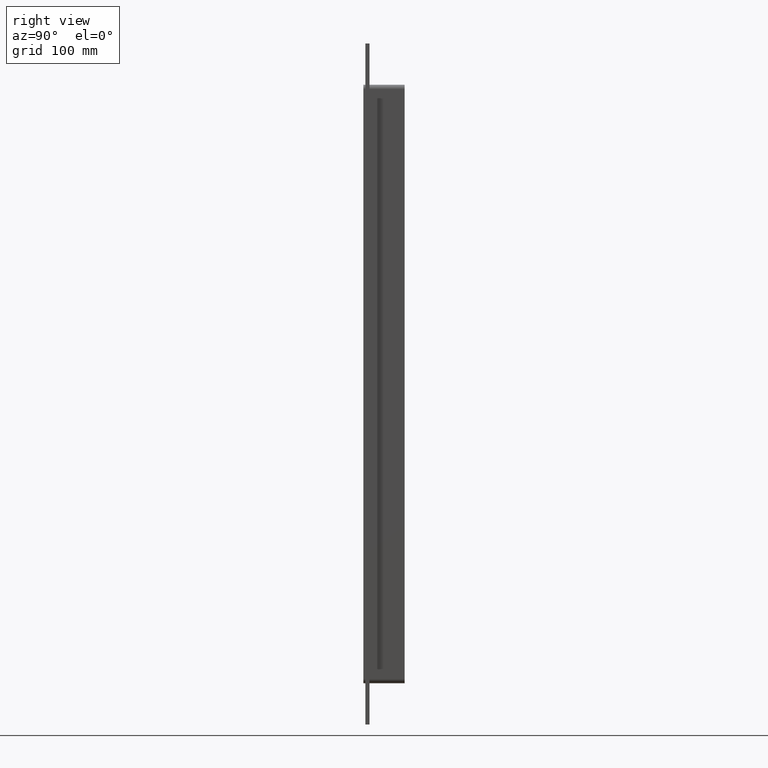
[diagram: clean part render]
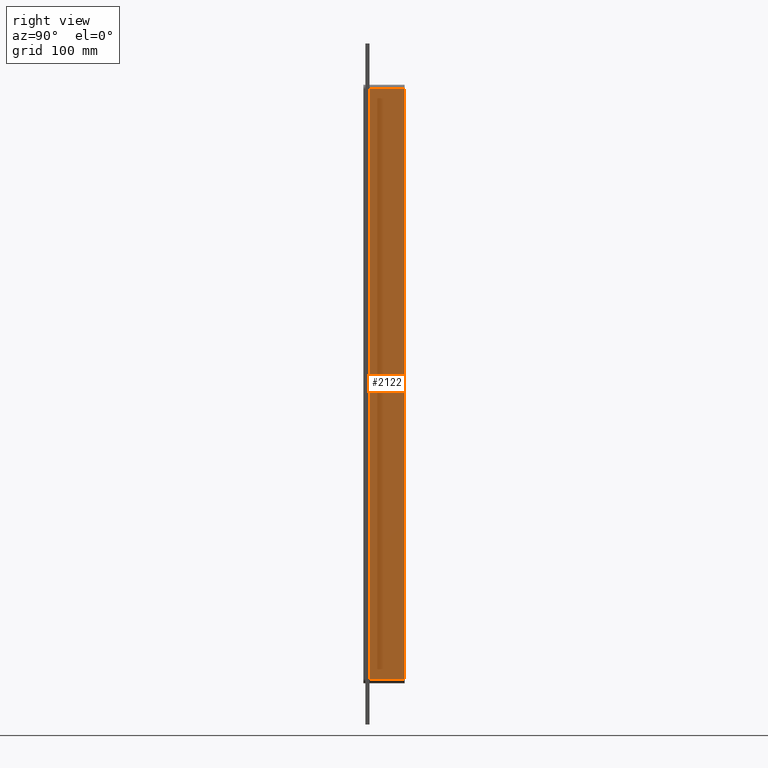
[diagram: same view with one face highlighted and labeled with its STEP entity id]
A machine part, right view. The second image highlights one B-rep face of the part: STEP entity #2122.
In plain terms, the highlighted planar face has unit normal (1, 0, 0).
Its self-contained STEP definition (entity closure, byte-faithful):
#1288=CARTESIAN_POINT('',(131.5,57.0,-428.99999999999989));
#1289=VERTEX_POINT('',#1288);
#1339=CARTESIAN_POINT('',(131.5,57.0,429.00000000000011));
#1340=VERTEX_POINT('',#1339);
#1348=CARTESIAN_POINT('',(131.5,57.0,429.00000000000011));
#1349=DIRECTION('',(0.0,0.0,-1.0));
#1350=VECTOR('',#1349,858.0);
#1351=LINE('',#1348,#1350);
#1352=EDGE_CURVE('',#1340,#1289,#1351,.T.);
#1709=CARTESIAN_POINT('',(131.5,6.000000000000001,-428.99999999999989));
#1710=VERTEX_POINT('',#1709);
#1718=CARTESIAN_POINT('',(131.5,6.000000000000001,429.00000000000011));
#1719=VERTEX_POINT('',#1718);
#1720=CARTESIAN_POINT('',(131.5,6.000000000000001,429.00000000000011));
#1721=DIRECTION('',(0.0,0.0,-1.0));
#1722=VECTOR('',#1721,858.0);
#1723=LINE('',#1720,#1722);
#1724=EDGE_CURVE('',#1719,#1710,#1723,.T.);
#2066=CARTESIAN_POINT('',(131.5,6.000000000000001,429.00000000000011));
#2067=DIRECTION('',(0.0,1.0,0.0));
#2068=VECTOR('',#2067,51.0);
#2069=LINE('',#2066,#2068);
#2070=EDGE_CURVE('',#1719,#1340,#2069,.T.);
#2106=CARTESIAN_POINT('',(131.5,0.0,435.00000000000011));
#2107=DIRECTION('',(1.0,0.0,0.0));
#2108=DIRECTION('',(0.0,0.0,-1.0));
#2109=AXIS2_PLACEMENT_3D('',#2106,#2107,#2108);
#2110=PLANE('',#2109);
#2111=ORIENTED_EDGE('',*,*,#1724,.T.);
#2112=CARTESIAN_POINT('',(131.5,57.0,-428.99999999999989));
#2113=DIRECTION('',(0.0,-1.0,0.0));
#2114=VECTOR('',#2113,51.0);
#2115=LINE('',#2112,#2114);
#2116=EDGE_CURVE('',#1289,#1710,#2115,.T.);
#2117=ORIENTED_EDGE('',*,*,#2116,.F.);
#2118=ORIENTED_EDGE('',*,*,#1352,.F.);
#2119=ORIENTED_EDGE('',*,*,#2070,.F.);
#2120=EDGE_LOOP('',(#2111,#2117,#2118,#2119));
#2121=FACE_OUTER_BOUND('',#2120,.T.);
#2122=ADVANCED_FACE('',(#2121),#2110,.T.);